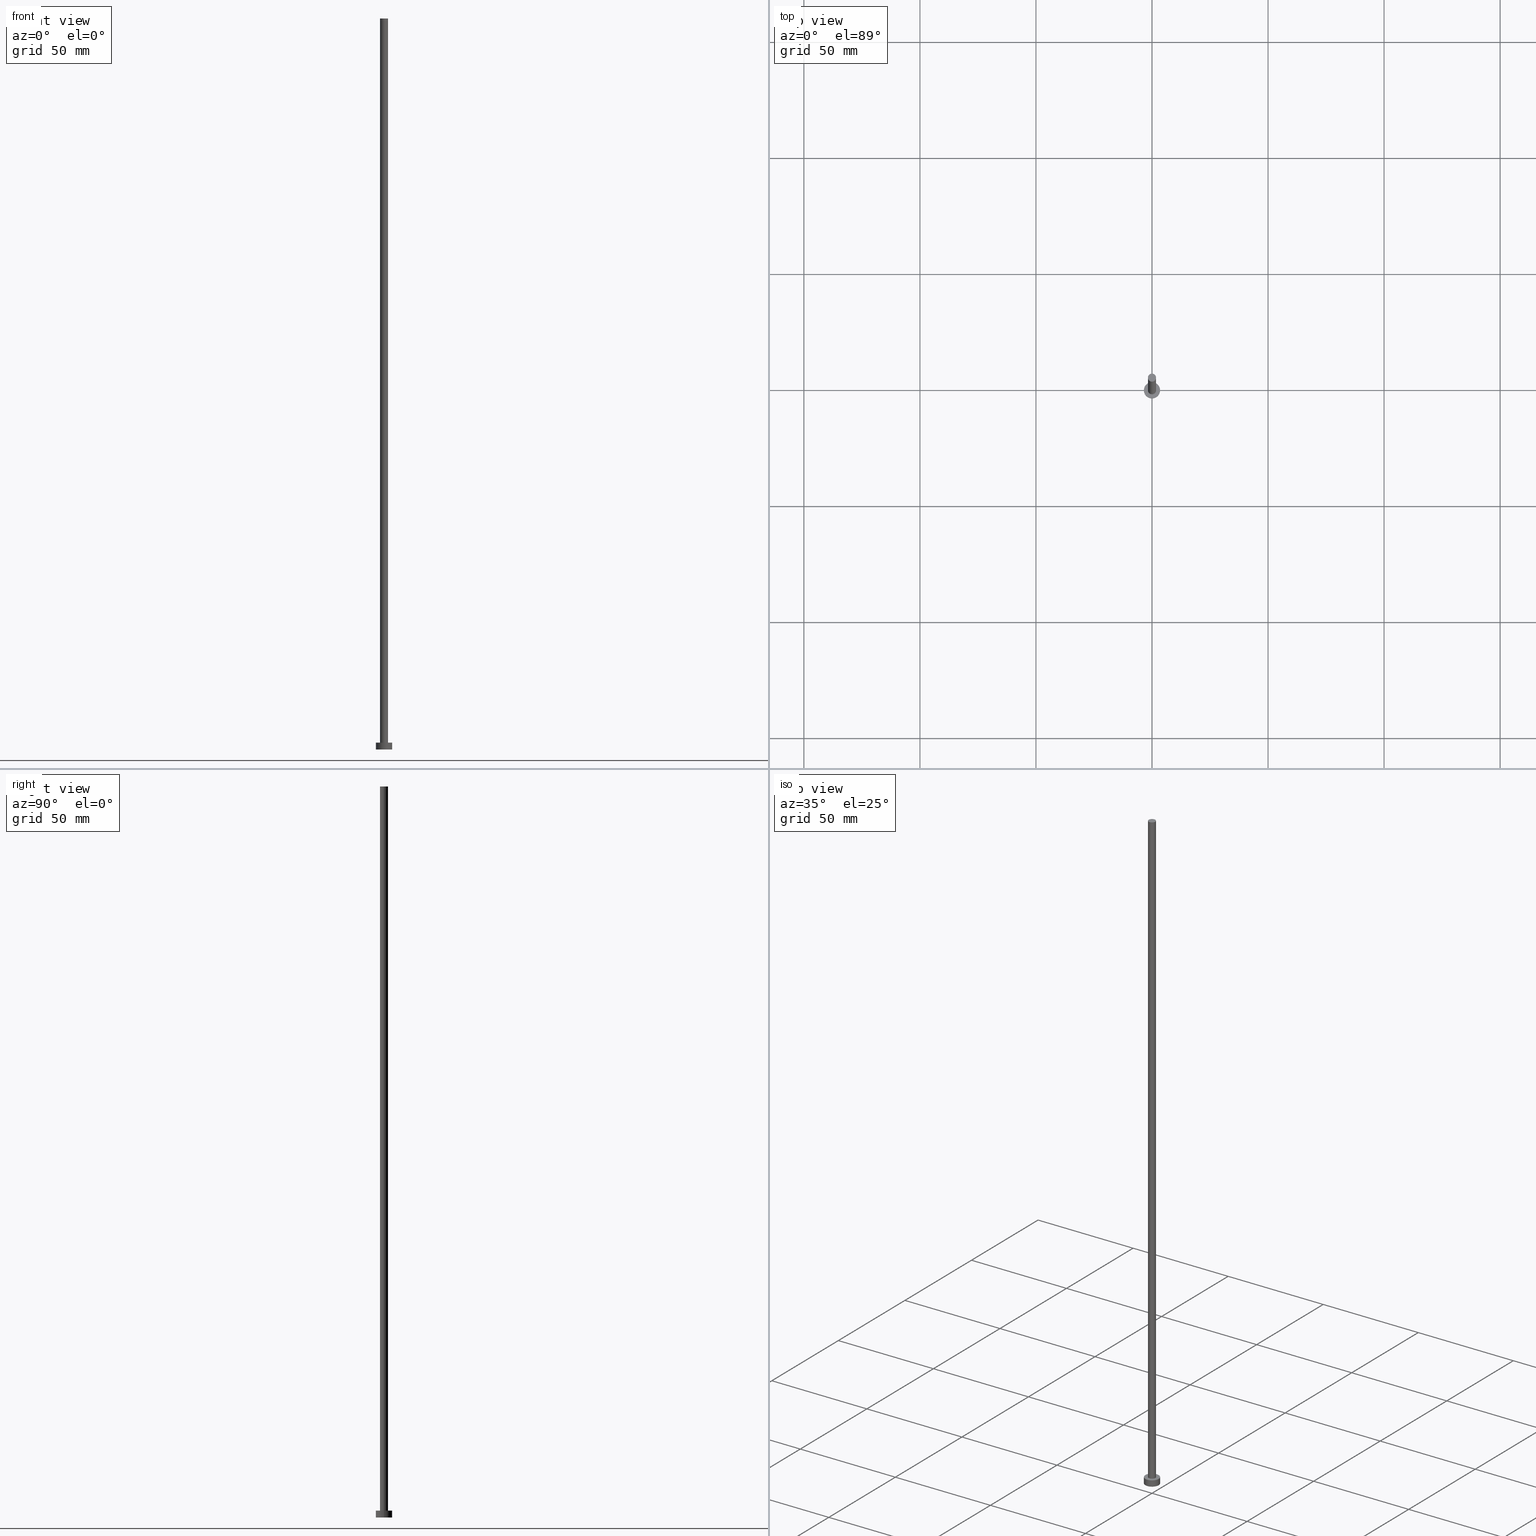
[diagram: canonical four-view strip — front | top / right | iso, engineering-drawing reading convention]
A machine part, canonical four-view strip (front | top / right | iso — engineering-drawing reading convention). The complete STEP part file that produces these views, byte-faithful:
ISO-10303-21;
HEADER;
FILE_DESCRIPTION (( 'STEP AP203' ),
    '1' );
FILE_NAME ('a299.STEP',
    '2023-02-13T16:23:05',
    ( '' ),
    ( '' ),
    'SwSTEP 2.0',
    'SolidWorks 2019',
    '' );
FILE_SCHEMA (( 'CONFIG_CONTROL_DESIGN' ));
ENDSEC;

DATA;
#1 = DIRECTION ( 'NONE',  ( 0.000000000000000000, 0.000000000000000000, 1.000000000000000000 ) ) ;
#2 = DIRECTION ( 'NONE',  ( 0.000000000000000000, 0.000000000000000000, 1.000000000000000000 ) ) ;
#3 = SECURITY_CLASSIFICATION ( '', '', #206 ) ;
#4 = DIRECTION ( 'NONE',  ( 1.000000000000000000, 0.000000000000000000, 0.000000000000000000 ) ) ;
#5 = LINE ( 'NONE', #76, #252 ) ;
#6 = CARTESIAN_POINT ( 'NONE',  ( -1.750000000000000000, 0.000000000000000000, 315.0000000000000000 ) ) ;
#7 = PERSON_AND_ORGANIZATION ( #62, #87 ) ;
#8 = APPROVAL ( #200, 'NEUR�EN�' ) ;
#9 = CIRCLE ( 'NONE', #195, 3.500000000000000000 ) ;
#10 = DIRECTION ( 'NONE',  ( 1.000000000000000000, 0.000000000000000000, 0.000000000000000000 ) ) ;
#11 = CC_DESIGN_PERSON_AND_ORGANIZATION_ASSIGNMENT ( #163, #247, ( #224 ) ) ;
#12 = PERSON_AND_ORGANIZATION ( #62, #87 ) ;
#13 = DATE_AND_TIME ( #146, #191 ) ;
#14 = CC_DESIGN_PERSON_AND_ORGANIZATION_ASSIGNMENT ( #7, #78, ( #184 ) ) ;
#15 = DIRECTION ( 'NONE',  ( -0.000000000000000000, -0.000000000000000000, -1.000000000000000000 ) ) ;
#16 = LINE ( 'NONE', #171, #179 ) ;
#17 = EDGE_CURVE ( 'NONE', #188, #238, #212, .T. ) ;
#18 = DIRECTION ( 'NONE',  ( 1.000000000000000000, 0.000000000000000000, 0.000000000000000000 ) ) ;
#19 = AXIS2_PLACEMENT_3D ( 'NONE', #198, #22, #159 ) ;
#20 = DIRECTION ( 'NONE',  ( 0.000000000000000000, 0.000000000000000000, 1.000000000000000000 ) ) ;
#21 = EDGE_CURVE ( 'NONE', #152, #108, #35, .T. ) ;
#22 = DIRECTION ( 'NONE',  ( 0.000000000000000000, 0.000000000000000000, 1.000000000000000000 ) ) ;
#23 = FACE_OUTER_BOUND ( 'NONE', #67, .T. ) ;
#24 = DATE_AND_TIME ( #28, #253 ) ;
#25 = CIRCLE ( 'NONE', #250, 3.500000000000000000 ) ;
#26 = EDGE_CURVE ( 'NONE', #211, #188, #53, .T. ) ;
#27 = CARTESIAN_POINT ( 'NONE',  ( 0.000000000000000000, 0.000000000000000000, 3.000000000000000000 ) ) ;
#28 = CALENDAR_DATE ( 2023, 13, 2 ) ;
#29 = ADVANCED_FACE ( 'NONE', ( #94 ), #194, .T. ) ;
#30 = APPROVAL_DATE_TIME ( #185, #73 ) ;
#31 = ORIENTED_EDGE ( 'NONE', *, *, #160, .F. ) ;
#32 = COORDINATED_UNIVERSAL_TIME_OFFSET ( 1, 0, .AHEAD. ) ;
#33 = ORIENTED_EDGE ( 'NONE', *, *, #45, .F. ) ;
#34 = EDGE_LOOP ( 'NONE', ( #103, #190, #149, #31 ) ) ;
#35 = CIRCLE ( 'NONE', #178, 3.500000000000000000 ) ;
#36 = EDGE_CURVE ( 'NONE', #211, #235, #133, .T. ) ;
#37 = CARTESIAN_POINT ( 'NONE',  ( 0.000000000000000000, 0.000000000000000000, 0.000000000000000000 ) ) ;
#38 = DIRECTION ( 'NONE',  ( 1.000000000000000000, 0.000000000000000000, 0.000000000000000000 ) ) ;
#39 = VERTEX_POINT ( 'NONE', #220 ) ;
#40 = PLANE ( 'NONE',  #19 ) ;
#41 = DIRECTION ( 'NONE',  ( 0.000000000000000000, 0.000000000000000000, 1.000000000000000000 ) ) ;
#42 = CARTESIAN_POINT ( 'NONE',  ( 0.000000000000000000, 0.000000000000000000, 0.000000000000000000 ) ) ;
#43 = DIRECTION ( 'NONE',  ( -1.000000000000000000, 0.000000000000000000, 0.000000000000000000 ) ) ;
#44 = DIRECTION ( 'NONE',  ( 1.000000000000000000, 0.000000000000000000, 0.000000000000000000 ) ) ;
#45 = EDGE_CURVE ( 'NONE', #39, #147, #25, .T. ) ;
#46 = AXIS2_PLACEMENT_3D ( 'NONE', #227, #117, #98 ) ;
#47 = ADVANCED_FACE ( 'NONE', ( #88 ), #74, .T. ) ;
#48 = PERSON_AND_ORGANIZATION ( #62, #87 ) ;
#49 = VECTOR ( 'NONE', #15, 1000.000000000000000 ) ;
#50 = ORIENTED_EDGE ( 'NONE', *, *, #26, .T. ) ;
#51 = CARTESIAN_POINT ( 'NONE',  ( 0.000000000000000000, 0.000000000000000000, 315.0000000000000000 ) ) ;
#52 = CARTESIAN_POINT ( 'NONE',  ( 3.500000000000000000, 4.286263797015736595E-16, 0.000000000000000000 ) ) ;
#53 = LINE ( 'NONE', #241, #49 ) ;
#54 = DIRECTION ( 'NONE',  ( -0.000000000000000000, -0.000000000000000000, -1.000000000000000000 ) ) ;
#55 = AXIS2_PLACEMENT_3D ( 'NONE', #42, #41, #44 ) ;
#56 = APPROVAL_ROLE ( '' ) ;
#57 =( NAMED_UNIT ( * ) SI_UNIT ( $, .STERADIAN. ) SOLID_ANGLE_UNIT ( ) );
#58 = PRODUCT ( 'a299', 'a299', '', ( #139 ) ) ;
#59 = COORDINATED_UNIVERSAL_TIME_OFFSET ( 1, 0, .AHEAD. ) ;
#60 = CARTESIAN_POINT ( 'NONE',  ( 0.000000000000000000, 0.000000000000000000, 3.000000000000000000 ) ) ;
#61 = PLANE ( 'NONE',  #162 ) ;
#62 = PERSON ( 'NEUR�EN�', 'NEUR�EN�', 'NEUR�EN�', ('NEUR�EN�'), ('NEUR�EN�'), ('NEUR�EN�') ) ;
#63 = APPROVAL_STATUS ( 'not_yet_approved' ) ;
#64 = CALENDAR_DATE ( 2023, 13, 2 ) ;
#65 = ORIENTED_EDGE ( 'NONE', *, *, #45, .T. ) ;
#66 = EDGE_CURVE ( 'NONE', #235, #211, #129, .T. ) ;
#67 = EDGE_LOOP ( 'NONE', ( #130, #50, #230, #136 ) ) ;
#68 = ORIENTED_EDGE ( 'NONE', *, *, #144, .F. ) ;
#69 = AXIS2_PLACEMENT_3D ( 'NONE', #27, #141, #43 ) ;
#70 = EDGE_CURVE ( 'NONE', #147, #152, #5, .T. ) ;
#71 = CARTESIAN_POINT ( 'NONE',  ( 0.000000000000000000, 0.000000000000000000, 3.000000000000000000 ) ) ;
#72 = CARTESIAN_POINT ( 'NONE',  ( 0.000000000000000000, 0.000000000000000000, 3.000000000000000000 ) ) ;
#73 = APPROVAL ( #63, 'NEUR�EN�' ) ;
#74 = CYLINDRICAL_SURFACE ( 'NONE', #196, 1.750000000000000000 ) ;
#75 = FACE_OUTER_BOUND ( 'NONE', #86, .T. ) ;
#76 = CARTESIAN_POINT ( 'NONE',  ( 3.500000000000000000, 4.286263797015736595E-16, 3.000000000000000000 ) ) ;
#77 = CC_DESIGN_APPROVAL ( #96, ( #3 ) ) ;
#78 = PERSON_AND_ORGANIZATION_ROLE ( 'creator' ) ;
#79 = DIRECTION ( 'NONE',  ( 0.000000000000000000, 0.000000000000000000, 1.000000000000000000 ) ) ;
#80 = LINE ( 'NONE', #6, #204 ) ;
#81 = AXIS2_PLACEMENT_3D ( 'NONE', #100, #79, #10 ) ;
#82 = CIRCLE ( 'NONE', #233, 3.500000000000000000 ) ;
#83 = APPLICATION_PROTOCOL_DEFINITION ( 'international standard', 'config_control_design', 1994, #205 ) ;
#84 = ORIENTED_EDGE ( 'NONE', *, *, #249, .F. ) ;
#85 = UNCERTAINTY_MEASURE_WITH_UNIT (LENGTH_MEASURE( 1.000000000000000082E-05 ), #225, 'distance_accuracy_value', 'NONE');
#86 = EDGE_LOOP ( 'NONE', ( #68, #132 ) ) ;
#87 = ORGANIZATION ( 'NEUR�EN�', 'NEUR�EN�', '' ) ;
#88 = FACE_OUTER_BOUND ( 'NONE', #214, .T. ) ;
#89 = CARTESIAN_POINT ( 'NONE',  ( -3.500000000000000000, 0.000000000000000000, 0.000000000000000000 ) ) ;
#90 = CYLINDRICAL_SURFACE ( 'NONE', #251, 3.500000000000000000 ) ;
#91 = APPROVAL_PERSON_ORGANIZATION ( #180, #8, #56 ) ;
#92 = AXIS2_PLACEMENT_3D ( 'NONE', #51, #158, #134 ) ;
#93 = DIRECTION ( 'NONE',  ( 0.000000000000000000, 0.000000000000000000, 1.000000000000000000 ) ) ;
#94 = FACE_OUTER_BOUND ( 'NONE', #127, .T. ) ;
#95 = DIRECTION ( 'NONE',  ( 1.000000000000000000, 0.000000000000000000, -0.000000000000000000 ) ) ;
#96 = APPROVAL ( #143, 'NEUR�EN�' ) ;
#97 = AXIS2_PLACEMENT_3D ( 'NONE', #242, #116, #192 ) ;
#98 = DIRECTION ( 'NONE',  ( -1.000000000000000000, 0.000000000000000000, 0.000000000000000000 ) ) ;
#99 = FACE_BOUND ( 'NONE', #106, .T. ) ;
#100 = CARTESIAN_POINT ( 'NONE',  ( 0.000000000000000000, 0.000000000000000000, 3.000000000000000000 ) ) ;
#101 = PERSON_AND_ORGANIZATION_ROLE ( 'classification_officer' ) ;
#102 = ORIENTED_EDGE ( 'NONE', *, *, #255, .T. ) ;
#103 = ORIENTED_EDGE ( 'NONE', *, *, #151, .F. ) ;
#104 = LOCAL_TIME ( 17, 23, 5.000000000000000000, #32 ) ;
#105 = APPROVAL_ROLE ( '' ) ;
#106 = EDGE_LOOP ( 'NONE', ( #84, #187 ) ) ;
#107 = ADVANCED_FACE ( 'NONE', ( #75 ), #40, .F. ) ;
#108 = VERTEX_POINT ( 'NONE', #89 ) ;
#109 = DESIGN_CONTEXT ( 'detailed design', #205, 'design' ) ;
#110 = DIRECTION ( 'NONE',  ( 1.000000000000000000, 0.000000000000000000, 0.000000000000000000 ) ) ;
#111 = AXIS2_PLACEMENT_3D ( 'NONE', #72, #175, #38 ) ;
#112 = EDGE_LOOP ( 'NONE', ( #65, #207 ) ) ;
#113 = CARTESIAN_POINT ( 'NONE',  ( 0.000000000000000000, 0.000000000000000000, 3.000000000000000000 ) ) ;
#114 = DIRECTION ( 'NONE',  ( -1.000000000000000000, 0.000000000000000000, 0.000000000000000000 ) ) ;
#115 = LOCAL_TIME ( 17, 23, 5.000000000000000000, #126 ) ;
#116 = DIRECTION ( 'NONE',  ( 0.000000000000000000, 0.000000000000000000, 1.000000000000000000 ) ) ;
#117 = DIRECTION ( 'NONE',  ( -0.000000000000000000, -0.000000000000000000, -1.000000000000000000 ) ) ;
#118 = COORDINATED_UNIVERSAL_TIME_OFFSET ( 1, 0, .AHEAD. ) ;
#119 = CC_DESIGN_DATE_AND_TIME_ASSIGNMENT ( #125, #150, ( #184 ) ) ;
#120 = CARTESIAN_POINT ( 'NONE',  ( 1.750000000000000000, 2.143131898507868297E-16, 3.000000000000000000 ) ) ;
#121 = PERSON_AND_ORGANIZATION ( #62, #87 ) ;
#122 = ORIENTED_EDGE ( 'NONE', *, *, #70, .F. ) ;
#123 = DATE_TIME_ROLE ( 'classification_date' ) ;
#124 = EDGE_LOOP ( 'NONE', ( #122, #33, #209, #154 ) ) ;
#125 = DATE_AND_TIME ( #201, #232 ) ;
#126 = COORDINATED_UNIVERSAL_TIME_OFFSET ( 1, 0, .AHEAD. ) ;
#127 = EDGE_LOOP ( 'NONE', ( #167, #237 ) ) ;
#128 = CC_DESIGN_APPROVAL ( #73, ( #224 ) ) ;
#129 = CIRCLE ( 'NONE', #221, 1.750000000000000000 ) ;
#130 = ORIENTED_EDGE ( 'NONE', *, *, #36, .F. ) ;
#131 = CARTESIAN_POINT ( 'NONE',  ( 0.000000000000000000, 0.000000000000000000, 0.000000000000000000 ) ) ;
#132 = ORIENTED_EDGE ( 'NONE', *, *, #21, .F. ) ;
#133 = CIRCLE ( 'NONE', #97, 1.750000000000000000 ) ;
#134 = DIRECTION ( 'NONE',  ( 1.000000000000000000, 0.000000000000000000, -0.000000000000000000 ) ) ;
#135 = DIRECTION ( 'NONE',  ( -0.000000000000000000, -0.000000000000000000, -1.000000000000000000 ) ) ;
#136 = ORIENTED_EDGE ( 'NONE', *, *, #255, .F. ) ;
#137 =( GEOMETRIC_REPRESENTATION_CONTEXT ( 3 ) GLOBAL_UNCERTAINTY_ASSIGNED_CONTEXT ( ( #85 ) ) GLOBAL_UNIT_ASSIGNED_CONTEXT ( ( #225, #182, #57 ) ) REPRESENTATION_CONTEXT ( 'NONE', 'WORKASPACE' ) );
#138 = FACE_OUTER_BOUND ( 'NONE', #124, .T. ) ;
#139 = MECHANICAL_CONTEXT ( 'NONE', #189, 'mechanical' ) ;
#140 = CARTESIAN_POINT ( 'NONE',  ( 1.750000000000000000, 2.143131898507868297E-16, 315.0000000000000000 ) ) ;
#141 = DIRECTION ( 'NONE',  ( -0.000000000000000000, -0.000000000000000000, -1.000000000000000000 ) ) ;
#142 = APPLICATION_PROTOCOL_DEFINITION ( 'international standard', 'config_control_design', 1994, #189 ) ;
#143 = APPROVAL_STATUS ( 'not_yet_approved' ) ;
#144 = EDGE_CURVE ( 'NONE', #108, #152, #82, .T. ) ;
#145 = CLOSED_SHELL ( 'NONE', ( #222, #166, #218, #236, #107, #47, #29 ) ) ;
#146 = CALENDAR_DATE ( 2023, 13, 2 ) ;
#147 = VERTEX_POINT ( 'NONE', #169 ) ;
#148 = APPROVAL_DATE_TIME ( #234, #96 ) ;
#149 = ORIENTED_EDGE ( 'NONE', *, *, #21, .T. ) ;
#150 = DATE_TIME_ROLE ( 'creation_date' ) ;
#151 = EDGE_CURVE ( 'NONE', #147, #39, #9, .T. ) ;
#152 = VERTEX_POINT ( 'NONE', #52 ) ;
#153 = ORIENTED_EDGE ( 'NONE', *, *, #249, .T. ) ;
#154 = ORIENTED_EDGE ( 'NONE', *, *, #144, .T. ) ;
#155 = CARTESIAN_POINT ( 'NONE',  ( 0.000000000000000000, 0.000000000000000000, 315.0000000000000000 ) ) ;
#156 = DIRECTION ( 'NONE',  ( -0.000000000000000000, -0.000000000000000000, -1.000000000000000000 ) ) ;
#157 = CARTESIAN_POINT ( 'NONE',  ( 0.000000000000000000, 0.000000000000000000, 315.0000000000000000 ) ) ;
#158 = DIRECTION ( 'NONE',  ( 0.000000000000000000, 0.000000000000000000, 1.000000000000000000 ) ) ;
#159 = DIRECTION ( 'NONE',  ( 1.000000000000000000, 0.000000000000000000, -0.000000000000000000 ) ) ;
#160 = EDGE_CURVE ( 'NONE', #39, #108, #16, .T. ) ;
#161 = CYLINDRICAL_SURFACE ( 'NONE', #46, 1.750000000000000000 ) ;
#162 = AXIS2_PLACEMENT_3D ( 'NONE', #60, #202, #95 ) ;
#163 = PERSON_AND_ORGANIZATION ( #62, #87 ) ;
#164 = PRODUCT_DEFINITION_SHAPE ( 'NONE', 'NONE',  #184 ) ;
#165 = PERSON_AND_ORGANIZATION_ROLE ( 'creator' ) ;
#166 = ADVANCED_FACE ( 'NONE', ( #193 ), #90, .T. ) ;
#167 = ORIENTED_EDGE ( 'NONE', *, *, #66, .T. ) ;
#168 = APPROVAL_PERSON_ORGANIZATION ( #248, #73, #105 ) ;
#169 = CARTESIAN_POINT ( 'NONE',  ( 3.500000000000000000, 4.286263797015736595E-16, 3.000000000000000000 ) ) ;
#170 = PRODUCT_RELATED_PRODUCT_CATEGORY ( 'detail', '', ( #58 ) ) ;
#171 = CARTESIAN_POINT ( 'NONE',  ( -3.500000000000000000, 0.000000000000000000, 3.000000000000000000 ) ) ;
#172 = CARTESIAN_POINT ( 'NONE',  ( 0.000000000000000000, 0.000000000000000000, 3.000000000000000000 ) ) ;
#173 = APPROVAL_PERSON_ORGANIZATION ( #213, #96, #208 ) ;
#174 = CC_DESIGN_DATE_AND_TIME_ASSIGNMENT ( #13, #123, ( #3 ) ) ;
#175 = DIRECTION ( 'NONE',  ( 0.000000000000000000, 0.000000000000000000, 1.000000000000000000 ) ) ;
#176 = DIRECTION ( 'NONE',  ( -0.000000000000000000, -0.000000000000000000, -1.000000000000000000 ) ) ;
#177 = DIRECTION ( 'NONE',  ( -0.000000000000000000, -0.000000000000000000, -1.000000000000000000 ) ) ;
#178 = AXIS2_PLACEMENT_3D ( 'NONE', #37, #1, #110 ) ;
#179 = VECTOR ( 'NONE', #156, 1000.000000000000000 ) ;
#180 = PERSON_AND_ORGANIZATION ( #62, #87 ) ;
#181 = CARTESIAN_POINT ( 'NONE',  ( -1.750000000000000000, 0.000000000000000000, 3.000000000000000000 ) ) ;
#182 =( NAMED_UNIT ( * ) PLANE_ANGLE_UNIT ( ) SI_UNIT ( $, .RADIAN. ) );
#183 = ADVANCED_BREP_SHAPE_REPRESENTATION ( 'a299', ( #197, #55 ), #137 ) ;
#184 = PRODUCT_DEFINITION ( 'NEZN�M�', '', #224, #109 ) ;
#185 = DATE_AND_TIME ( #210, #115 ) ;
#186 = CC_DESIGN_SECURITY_CLASSIFICATION ( #3, ( #224 ) ) ;
#187 = ORIENTED_EDGE ( 'NONE', *, *, #17, .F. ) ;
#188 = VERTEX_POINT ( 'NONE', #120 ) ;
#189 = APPLICATION_CONTEXT ( 'configuration controlled 3d designs of mechanical parts and assemblies' ) ;
#190 = ORIENTED_EDGE ( 'NONE', *, *, #70, .T. ) ;
#191 = LOCAL_TIME ( 17, 23, 5.000000000000000000, #228 ) ;
#192 = DIRECTION ( 'NONE',  ( 1.000000000000000000, 0.000000000000000000, 0.000000000000000000 ) ) ;
#193 = FACE_OUTER_BOUND ( 'NONE', #34, .T. ) ;
#194 = PLANE ( 'NONE',  #92 ) ;
#195 = AXIS2_PLACEMENT_3D ( 'NONE', #113, #2, #254 ) ;
#196 = AXIS2_PLACEMENT_3D ( 'NONE', #157, #176, #114 ) ;
#197 = MANIFOLD_SOLID_BREP ( 'P�idat vysunut�m3', #145 ) ;
#198 = CARTESIAN_POINT ( 'NONE',  ( 0.000000000000000000, 0.000000000000000000, 0.000000000000000000 ) ) ;
#199 = CARTESIAN_POINT ( 'NONE',  ( -1.750000000000000000, 0.000000000000000000, 315.0000000000000000 ) ) ;
#200 = APPROVAL_STATUS ( 'not_yet_approved' ) ;
#201 = CALENDAR_DATE ( 2023, 13, 2 ) ;
#202 = DIRECTION ( 'NONE',  ( 0.000000000000000000, 0.000000000000000000, 1.000000000000000000 ) ) ;
#203 = FACE_OUTER_BOUND ( 'NONE', #112, .T. ) ;
#204 = VECTOR ( 'NONE', #177, 1000.000000000000000 ) ;
#205 = APPLICATION_CONTEXT ( 'configuration controlled 3d designs of mechanical parts and assemblies' ) ;
#206 = SECURITY_CLASSIFICATION_LEVEL ( 'unclassified' ) ;
#207 = ORIENTED_EDGE ( 'NONE', *, *, #151, .T. ) ;
#208 = APPROVAL_ROLE ( '' ) ;
#209 = ORIENTED_EDGE ( 'NONE', *, *, #160, .T. ) ;
#210 = CALENDAR_DATE ( 2023, 13, 2 ) ;
#211 = VERTEX_POINT ( 'NONE', #140 ) ;
#212 = CIRCLE ( 'NONE', #111, 1.750000000000000000 ) ;
#213 = PERSON_AND_ORGANIZATION ( #62, #87 ) ;
#214 = EDGE_LOOP ( 'NONE', ( #216, #240, #102, #153 ) ) ;
#215 = DIRECTION ( 'NONE',  ( 0.000000000000000000, 0.000000000000000000, 1.000000000000000000 ) ) ;
#216 = ORIENTED_EDGE ( 'NONE', *, *, #26, .F. ) ;
#217 = DIRECTION ( 'NONE',  ( 1.000000000000000000, 0.000000000000000000, 0.000000000000000000 ) ) ;
#218 = ADVANCED_FACE ( 'NONE', ( #138 ), #223, .T. ) ;
#219 = DIRECTION ( 'NONE',  ( -1.000000000000000000, 0.000000000000000000, 0.000000000000000000 ) ) ;
#220 = CARTESIAN_POINT ( 'NONE',  ( -3.500000000000000000, 0.000000000000000000, 3.000000000000000000 ) ) ;
#221 = AXIS2_PLACEMENT_3D ( 'NONE', #155, #20, #4 ) ;
#222 = ADVANCED_FACE ( 'NONE', ( #23 ), #161, .T. ) ;
#223 = CYLINDRICAL_SURFACE ( 'NONE', #69, 3.500000000000000000 ) ;
#224 = PRODUCT_DEFINITION_FORMATION_WITH_SPECIFIED_SOURCE ( 'LIBOVOLN�', '', #58, .NOT_KNOWN. ) ;
#225 =( LENGTH_UNIT ( ) NAMED_UNIT ( * ) SI_UNIT ( .MILLI., .METRE. ) );
#226 = CC_DESIGN_PERSON_AND_ORGANIZATION_ASSIGNMENT ( #12, #101, ( #3 ) ) ;
#227 = CARTESIAN_POINT ( 'NONE',  ( 0.000000000000000000, 0.000000000000000000, 315.0000000000000000 ) ) ;
#228 = COORDINATED_UNIVERSAL_TIME_OFFSET ( 1, 0, .AHEAD. ) ;
#229 = CIRCLE ( 'NONE', #81, 1.750000000000000000 ) ;
#230 = ORIENTED_EDGE ( 'NONE', *, *, #17, .T. ) ;
#231 = SHAPE_DEFINITION_REPRESENTATION ( #164, #183 ) ;
#232 = LOCAL_TIME ( 17, 23, 5.000000000000000000, #59 ) ;
#233 = AXIS2_PLACEMENT_3D ( 'NONE', #131, #215, #217 ) ;
#234 = DATE_AND_TIME ( #64, #104 ) ;
#235 = VERTEX_POINT ( 'NONE', #199 ) ;
#236 = ADVANCED_FACE ( 'NONE', ( #99, #203 ), #61, .T. ) ;
#237 = ORIENTED_EDGE ( 'NONE', *, *, #36, .T. ) ;
#238 = VERTEX_POINT ( 'NONE', #181 ) ;
#239 = CC_DESIGN_PERSON_AND_ORGANIZATION_ASSIGNMENT ( #121, #246, ( #58 ) ) ;
#240 = ORIENTED_EDGE ( 'NONE', *, *, #66, .F. ) ;
#241 = CARTESIAN_POINT ( 'NONE',  ( 1.750000000000000000, 2.143131898507868297E-16, 315.0000000000000000 ) ) ;
#242 = CARTESIAN_POINT ( 'NONE',  ( 0.000000000000000000, 0.000000000000000000, 315.0000000000000000 ) ) ;
#243 = CC_DESIGN_APPROVAL ( #8, ( #184 ) ) ;
#244 = APPROVAL_DATE_TIME ( #24, #8 ) ;
#245 = CC_DESIGN_PERSON_AND_ORGANIZATION_ASSIGNMENT ( #48, #165, ( #224 ) ) ;
#246 = PERSON_AND_ORGANIZATION_ROLE ( 'design_owner' ) ;
#247 = PERSON_AND_ORGANIZATION_ROLE ( 'design_supplier' ) ;
#248 = PERSON_AND_ORGANIZATION ( #62, #87 ) ;
#249 = EDGE_CURVE ( 'NONE', #238, #188, #229, .T. ) ;
#250 = AXIS2_PLACEMENT_3D ( 'NONE', #71, #93, #18 ) ;
#251 = AXIS2_PLACEMENT_3D ( 'NONE', #172, #135, #219 ) ;
#252 = VECTOR ( 'NONE', #54, 1000.000000000000000 ) ;
#253 = LOCAL_TIME ( 17, 23, 5.000000000000000000, #118 ) ;
#254 = DIRECTION ( 'NONE',  ( 1.000000000000000000, 0.000000000000000000, 0.000000000000000000 ) ) ;
#255 = EDGE_CURVE ( 'NONE', #235, #238, #80, .T. ) ;
ENDSEC;
END-ISO-10303-21;
